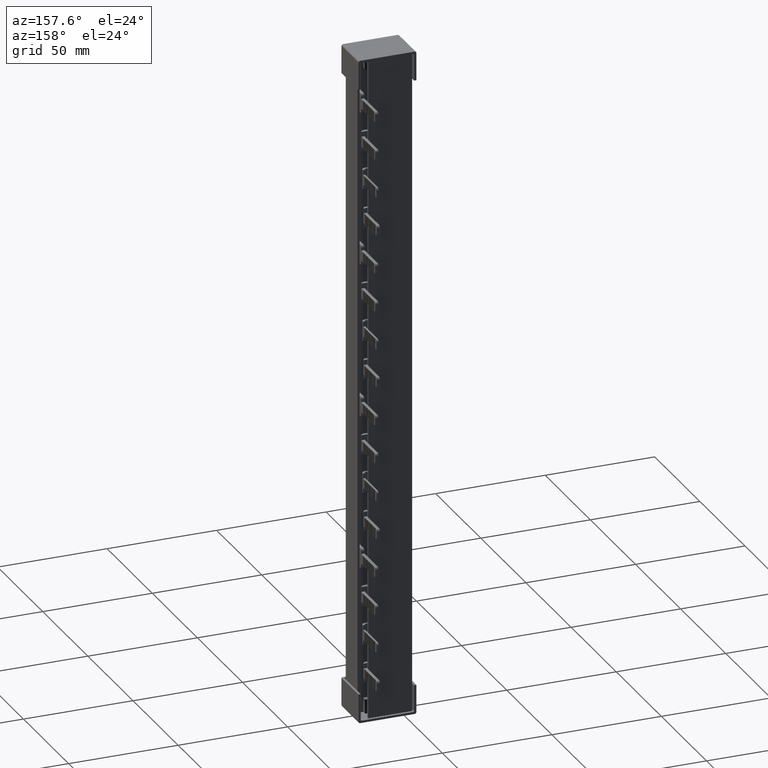
[diagram: clean part render]
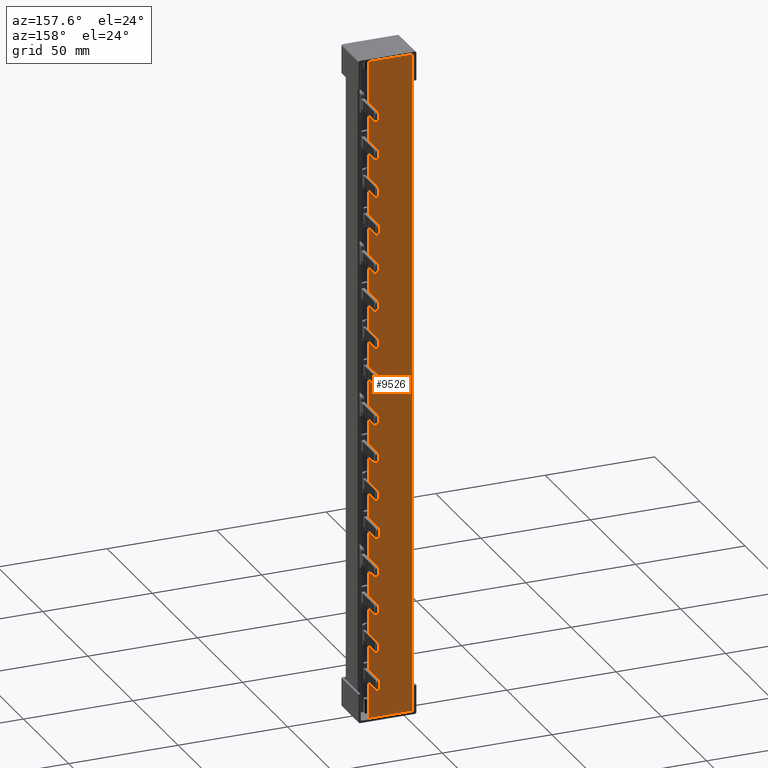
[diagram: same view with one face highlighted and labeled with its STEP entity id]
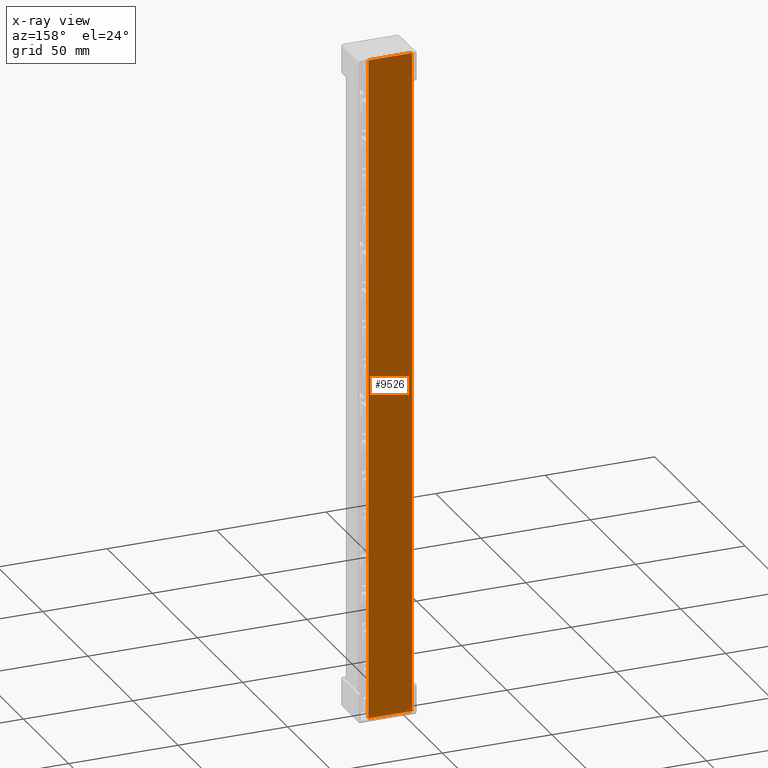
[diagram: x-ray of the same camera — body ghosted, the highlighted face saturated]
A machine part, auxiliary view. The second image highlights one B-rep face of the part: STEP entity #9526.
The next image is the same camera in x-ray: the body ghosted, the highlighted face saturated — about 0% of this face is hidden behind the body in this view.
In plain terms, the highlighted planar face has unit normal (0, 1, 0).
Its self-contained STEP definition (entity closure, byte-faithful):
#4611 = AXIS2_PLACEMENT_3D ( 'NONE', #27297, #27286, #27239 ) ;
#5777 = EDGE_CURVE ( 'NONE', #30464, #30443, #9808, .T. ) ;
#5786 = EDGE_CURVE ( 'NONE', #29475, #29447, #9817, .T. ) ;
#5787 = EDGE_CURVE ( 'NONE', #30494, #30468, #33128, .T. ) ;
#5801 = EDGE_CURVE ( 'NONE', #30468, #30432, #9864, .T. ) ;
#5815 = EDGE_CURVE ( 'NONE', #29498, #29475, #9905, .T. ) ;
#5816 = EDGE_CURVE ( 'NONE', #29487, #29498, #9887, .T. ) ;
#5821 = EDGE_CURVE ( 'NONE', #29537, #29487, #9960, .T. ) ;
#5835 = EDGE_CURVE ( 'NONE', #30458, #30494, #10000, .T. ) ;
#5837 = EDGE_CURVE ( 'NONE', #29447, #30425, #9978, .T. ) ;
#5854 = EDGE_CURVE ( 'NONE', #30432, #30464, #33226, .T. ) ;
#5859 = EDGE_CURVE ( 'NONE', #30437, #29507, #10052, .T. ) ;
#5867 = EDGE_CURVE ( 'NONE', #29507, #29537, #10040, .T. ) ;
#5869 = EDGE_CURVE ( 'NONE', #30425, #30458, #10055, .T. ) ;
#5870 = EDGE_CURVE ( 'NONE', #30443, #30437, #10106, .T. ) ;
#9526 = ADVANCED_FACE ( 'NONE', ( #27311 ), #27323, .T. ) ;
#9786 = CARTESIAN_POINT ( 'NONE',  ( 11.74999999999998400, 16.50000000000001400, 304.0000000000000000 ) ) ;
#9789 = DIRECTION ( 'NONE',  ( 1.000000000000000000, 0.0000000000000000000, -0.0000000000000000000 ) ) ;
#9808 = LINE ( 'NONE', #9786, #33150 ) ;
#9817 = LINE ( 'NONE', #9818, #33111 ) ;
#9818 = CARTESIAN_POINT ( 'NONE',  ( 19.99999999999990800, 16.50000000000001400, 306.0000000000000000 ) ) ;
#9821 = DIRECTION ( 'NONE',  ( -0.0000000000000000000, 0.0000000000000000000, -1.000000000000000000 ) ) ;
#9829 = CARTESIAN_POINT ( 'NONE',  ( 0.0000000000000000000, 16.50000000000001400, 306.0000000000000000 ) ) ;
#9839 = DIRECTION ( 'NONE',  ( 0.0000000000000000000, -0.0000000000000000000, 1.000000000000000000 ) ) ;
#9844 = DIRECTION ( 'NONE',  ( 0.0000000000000000000, 1.000000000000000000, 0.0000000000000000000 ) ) ;
#9847 = CARTESIAN_POINT ( 'NONE',  ( 0.05000000020459298400, 16.50000000000001800, 0.5000000000000559600 ) ) ;
#9864 = LINE ( 'NONE', #9829, #33208 ) ;
#9865 = DIRECTION ( 'NONE',  ( 0.0000000000000000000, 0.0000000000000000000, 1.000000000000000000 ) ) ;
#9879 = DIRECTION ( 'NONE',  ( -0.0000000000000000000, 0.0000000000000000000, -1.000000000000000000 ) ) ;
#9887 = LINE ( 'NONE', #9899, #33197 ) ;
#9899 = CARTESIAN_POINT ( 'NONE',  ( 19.99999999999990800, 16.50000000000001400, 306.0000000000000000 ) ) ;
#9905 = LINE ( 'NONE', #9909, #33192 ) ;
#9909 = CARTESIAN_POINT ( 'NONE',  ( 20.00000000000001800, 16.50000000000001400, 306.0000000000000000 ) ) ;
#9915 = DIRECTION ( 'NONE',  ( -0.0000000000000000000, 0.0000000000000000000, -1.000000000000000000 ) ) ;
#9933 = DIRECTION ( 'NONE',  ( -0.0000000000000000000, 0.0000000000000000000, -1.000000000000000000 ) ) ;
#9940 = CARTESIAN_POINT ( 'NONE',  ( 20.00000000000001800, 16.50000000000001400, 306.0000000000000000 ) ) ;
#9960 = LINE ( 'NONE', #9940, #33219 ) ;
#9973 = DIRECTION ( 'NONE',  ( -1.000000000000000000, -0.0000000000000000000, 0.0000000000000000000 ) ) ;
#9978 = LINE ( 'NONE', #9990, #33207 ) ;
#9981 = DIRECTION ( 'NONE',  ( -0.0000000000000000000, 0.0000000000000000000, -1.000000000000000000 ) ) ;
#9990 = CARTESIAN_POINT ( 'NONE',  ( 20.00000000000001800, 16.50000000000001400, 306.0000000000000000 ) ) ;
#10000 = LINE ( 'NONE', #10006, #33221 ) ;
#10006 = CARTESIAN_POINT ( 'NONE',  ( 11.74999999999998400, 16.50000000000001400, 6.328271240363392300E-012 ) ) ;
#10033 = DIRECTION ( 'NONE',  ( 0.0000000000000000000, 0.0000000000000000000, 1.000000000000000000 ) ) ;
#10040 = LINE ( 'NONE', #10089, #33280 ) ;
#10041 = DIRECTION ( 'NONE',  ( 0.0000000000000000000, 1.000000000000000000, 0.0000000000000000000 ) ) ;
#10048 = CARTESIAN_POINT ( 'NONE',  ( 0.05000000020459298400, 16.50000000000001800, 303.4999999999999400 ) ) ;
#10052 = LINE ( 'NONE', #10053, #33300 ) ;
#10053 = CARTESIAN_POINT ( 'NONE',  ( 20.00000000000001800, 16.50000000000001400, 306.0000000000000000 ) ) ;
#10055 = LINE ( 'NONE', #10102, #33238 ) ;
#10061 = DIRECTION ( 'NONE',  ( -0.0000000000000000000, 0.0000000000000000000, -1.000000000000000000 ) ) ;
#10069 = CARTESIAN_POINT ( 'NONE',  ( 19.99999999999990800, 16.50000000000001400, 306.0000000000000000 ) ) ;
#10079 = DIRECTION ( 'NONE',  ( -0.0000000000000000000, 0.0000000000000000000, -1.000000000000000000 ) ) ;
#10083 = DIRECTION ( 'NONE',  ( -0.0000000000000000000, 0.0000000000000000000, -1.000000000000000000 ) ) ;
#10089 = CARTESIAN_POINT ( 'NONE',  ( 19.99999999999990800, 16.50000000000001400, 306.0000000000000000 ) ) ;
#10090 = DIRECTION ( 'NONE',  ( -0.0000000000000000000, 0.0000000000000000000, -1.000000000000000000 ) ) ;
#10102 = CARTESIAN_POINT ( 'NONE',  ( 19.99999999999990800, 16.50000000000001400, 306.0000000000000000 ) ) ;
#10106 = LINE ( 'NONE', #10069, #33255 ) ;
#22868 = ORIENTED_EDGE ( 'NONE', *, *, #5821, .T. ) ;
#22879 = ORIENTED_EDGE ( 'NONE', *, *, #5867, .T. ) ;
#22884 = ORIENTED_EDGE ( 'NONE', *, *, #5869, .T. ) ;
#22890 = ORIENTED_EDGE ( 'NONE', *, *, #5837, .T. ) ;
#22892 = ORIENTED_EDGE ( 'NONE', *, *, #5815, .T. ) ;
#22894 = ORIENTED_EDGE ( 'NONE', *, *, #5859, .T. ) ;
#22916 = ORIENTED_EDGE ( 'NONE', *, *, #5870, .T. ) ;
#22917 = ORIENTED_EDGE ( 'NONE', *, *, #5816, .T. ) ;
#22932 = ORIENTED_EDGE ( 'NONE', *, *, #5777, .T. ) ;
#22936 = ORIENTED_EDGE ( 'NONE', *, *, #5835, .T. ) ;
#22937 = ORIENTED_EDGE ( 'NONE', *, *, #5801, .T. ) ;
#22938 = ORIENTED_EDGE ( 'NONE', *, *, #5787, .T. ) ;
#22948 = ORIENTED_EDGE ( 'NONE', *, *, #5786, .T. ) ;
#23031 = ORIENTED_EDGE ( 'NONE', *, *, #5854, .T. ) ;
#24703 = CARTESIAN_POINT ( 'NONE',  ( 19.99999999999990800, 16.50000000000001400, 6.328503693292977700E-012 ) ) ;
#24706 = CARTESIAN_POINT ( 'NONE',  ( 19.99999999999996100, 16.50000000000001400, 232.9549999999963200 ) ) ;
#24707 = CARTESIAN_POINT ( 'NONE',  ( 0.0000000000000000000, 16.50000000000001400, 303.9974937185326700 ) ) ;
#24711 = CARTESIAN_POINT ( 'NONE',  ( 0.05000000020459298400, 16.50000000000001400, 304.0000000000000000 ) ) ;
#24725 = CARTESIAN_POINT ( 'NONE',  ( 19.99999999999996100, 16.50000000000001400, 18.15499999999637700 ) ) ;
#24739 = CARTESIAN_POINT ( 'NONE',  ( 0.0000000000000000000, 16.50000000000001400, 0.002506281467307732800 ) ) ;
#24752 = CARTESIAN_POINT ( 'NONE',  ( 19.99999999999990800, 16.50000000000001400, 303.9999999999968200 ) ) ;
#24801 = CARTESIAN_POINT ( 'NONE',  ( 0.05000000020467278200, 16.50000000000001800, 3.173080288104701600E-012 ) ) ;
#25996 = CARTESIAN_POINT ( 'NONE',  ( 19.99999999999996100, 16.50000000000001400, 22.65499999999636700 ) ) ;
#26005 = CARTESIAN_POINT ( 'NONE',  ( 19.99999999999996100, 16.50000000000001400, 158.3549999999963500 ) ) ;
#26032 = CARTESIAN_POINT ( 'NONE',  ( 19.99999999999996100, 16.50000000000001400, 228.4549999999963700 ) ) ;
#26039 = CARTESIAN_POINT ( 'NONE',  ( 19.99999999999996100, 16.50000000000001400, 88.25499999999638600 ) ) ;
#26040 = CARTESIAN_POINT ( 'NONE',  ( 19.99999999999996100, 16.50000000000001400, 92.75499999999635700 ) ) ;
#26065 = CARTESIAN_POINT ( 'NONE',  ( 19.99999999999996100, 16.50000000000001400, 162.8549999999963500 ) ) ;
#27239 = DIRECTION ( 'NONE',  ( 0.0000000000000000000, -0.0000000000000000000, 1.000000000000000000 ) ) ;
#27286 = DIRECTION ( 'NONE',  ( 0.0000000000000000000, 1.000000000000000000, 0.0000000000000000000 ) ) ;
#27297 = CARTESIAN_POINT ( 'NONE',  ( 11.74999999999998400, 16.50000000000001400, 306.0000000000000000 ) ) ;
#27311 = FACE_OUTER_BOUND ( 'NONE', #31055, .T. ) ;
#27323 = PLANE ( 'NONE',  #4611 ) ;
#29447 = VERTEX_POINT ( 'NONE', #25996 ) ;
#29475 = VERTEX_POINT ( 'NONE', #26039 ) ;
#29487 = VERTEX_POINT ( 'NONE', #26005 ) ;
#29498 = VERTEX_POINT ( 'NONE', #26040 ) ;
#29507 = VERTEX_POINT ( 'NONE', #26032 ) ;
#29537 = VERTEX_POINT ( 'NONE', #26065 ) ;
#30425 = VERTEX_POINT ( 'NONE', #24725 ) ;
#30432 = VERTEX_POINT ( 'NONE', #24707 ) ;
#30437 = VERTEX_POINT ( 'NONE', #24706 ) ;
#30443 = VERTEX_POINT ( 'NONE', #24752 ) ;
#30458 = VERTEX_POINT ( 'NONE', #24703 ) ;
#30464 = VERTEX_POINT ( 'NONE', #24711 ) ;
#30468 = VERTEX_POINT ( 'NONE', #24739 ) ;
#30494 = VERTEX_POINT ( 'NONE', #24801 ) ;
#31055 = EDGE_LOOP ( 'NONE', ( #22916, #22894, #22879, #22868, #22917, #22892, #22948, #22890, #22884, #22936, #22938, #22937, #23031, #22932 ) ) ;
#33111 = VECTOR ( 'NONE', #9821, 1000.000000000000000 ) ;
#33128 = CIRCLE ( 'NONE', #33154, 0.5000000000000000000 ) ;
#33150 = VECTOR ( 'NONE', #9789, 1000.000000000000000 ) ;
#33154 = AXIS2_PLACEMENT_3D ( 'NONE', #9847, #9844, #9865 ) ;
#33192 = VECTOR ( 'NONE', #9915, 1000.000000000000000 ) ;
#33197 = VECTOR ( 'NONE', #9879, 1000.000000000000000 ) ;
#33207 = VECTOR ( 'NONE', #9981, 1000.000000000000000 ) ;
#33208 = VECTOR ( 'NONE', #9839, 1000.000000000000000 ) ;
#33219 = VECTOR ( 'NONE', #9933, 1000.000000000000000 ) ;
#33221 = VECTOR ( 'NONE', #9973, 1000.000000000000000 ) ;
#33226 = CIRCLE ( 'NONE', #33228, 0.5000000000000004400 ) ;
#33228 = AXIS2_PLACEMENT_3D ( 'NONE', #10048, #10041, #10033 ) ;
#33238 = VECTOR ( 'NONE', #10083, 1000.000000000000000 ) ;
#33255 = VECTOR ( 'NONE', #10090, 1000.000000000000000 ) ;
#33280 = VECTOR ( 'NONE', #10079, 1000.000000000000000 ) ;
#33300 = VECTOR ( 'NONE', #10061, 1000.000000000000000 ) ;